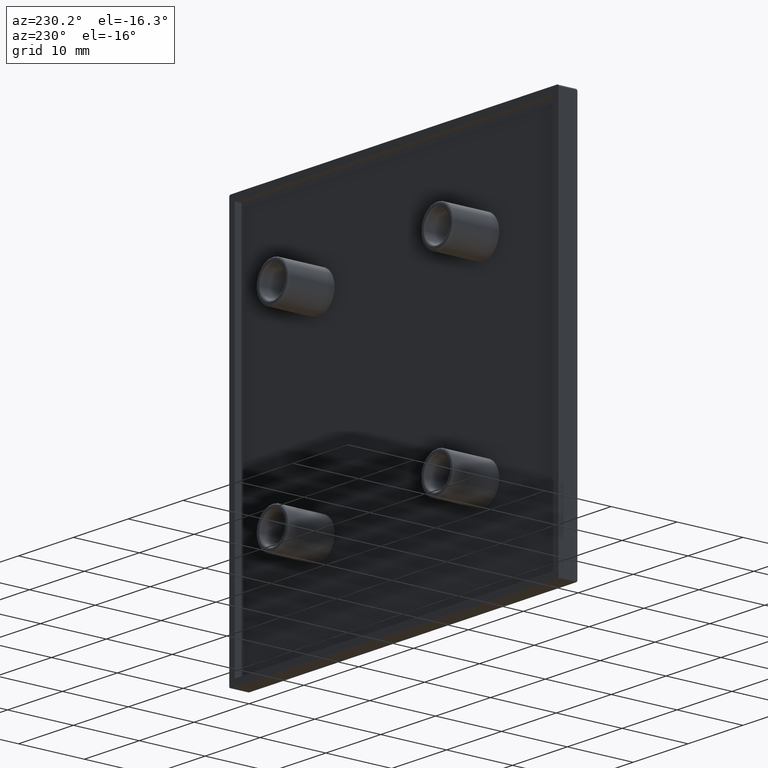
[diagram: clean part render]
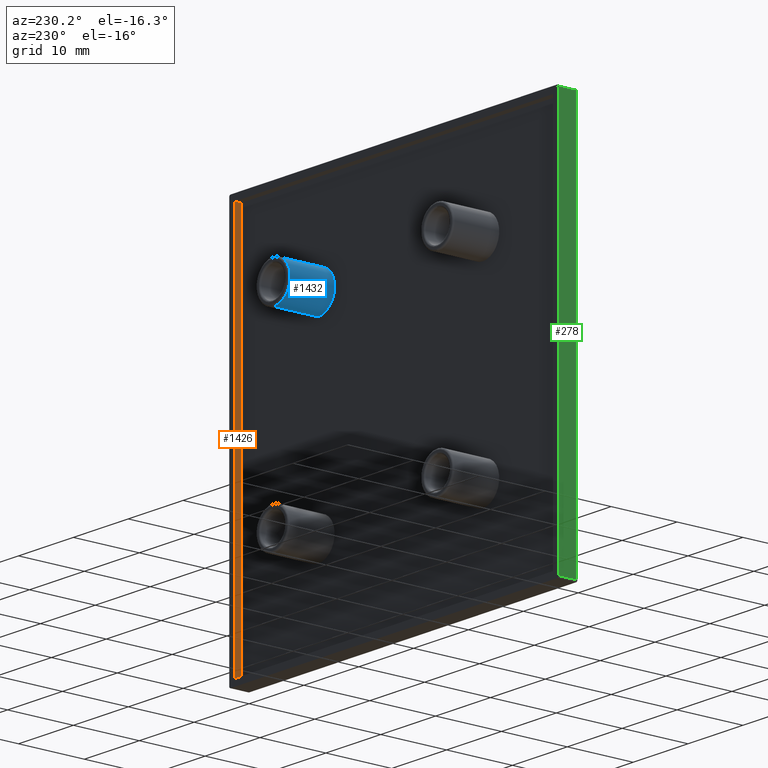
[diagram: same view with three faces highlighted in distinct colors, each labeled with its STEP entity id]
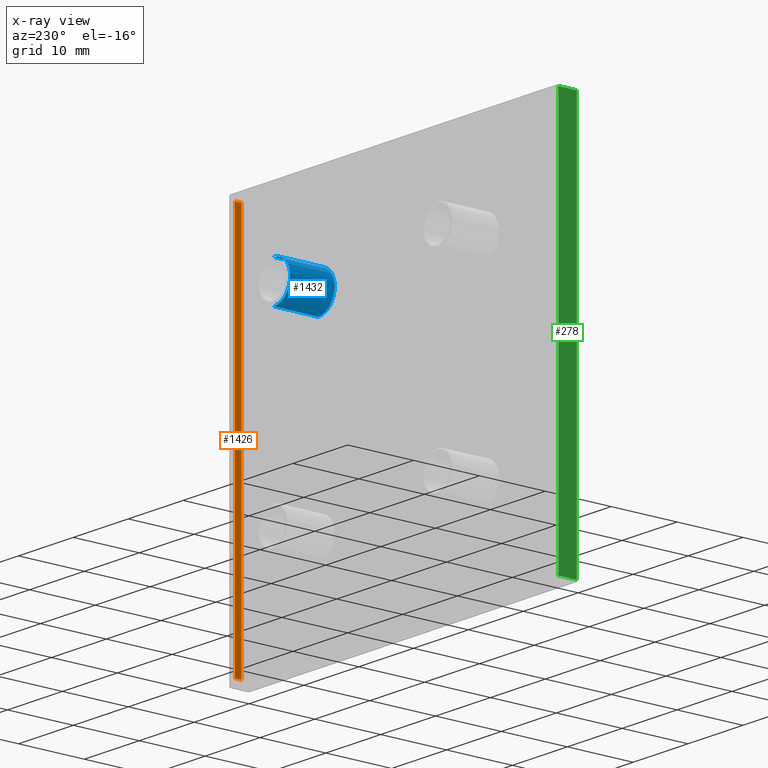
[diagram: x-ray of the same camera — body ghosted, the three highlighted faces saturated]
A machine part, auxiliary view with three faces highlighted in distinct colors.
The next image is the same camera in x-ray (body ghosted, the three faces saturated) — at least one of them is partly hidden behind the body in this view.
Their STEP definitions:

[orange] entity #1426 — the highlighted planar face has unit normal (1, -0, 0).
#26 = EDGE_CURVE ( 'NONE', #835, #838, #1366, .T. ) ;
#110 = PLANE ( 'NONE',  #412 ) ;
#111 = CARTESIAN_POINT ( 'NONE',  ( 59.00000000000000700, 2.000000000000000000, -1.000000000000000000 ) ) ;
#112 = DIRECTION ( 'NONE',  ( 1.000000000000000000, -0.0000000000000000000, 0.0000000000000000000 ) ) ;
#113 = DIRECTION ( 'NONE',  ( 0.0000000000000000000, 0.0000000000000000000, -1.000000000000000000 ) ) ;
#412 = AXIS2_PLACEMENT_3D ( 'NONE', #111, #112, #113 ) ;
#491 = LINE ( 'NONE', #1627, #493 ) ;
#493 = VECTOR ( 'NONE', #1628, 1000.000000000000000 ) ;
#498 = LINE ( 'NONE', #1634, #499 ) ;
#499 = VECTOR ( 'NONE', #1635, 1000.000000000000000 ) ;
#500 = LINE ( 'NONE', #659, #501 ) ;
#501 = VECTOR ( 'NONE', #660, 1000.000000000000000 ) ;
#659 = CARTESIAN_POINT ( 'NONE',  ( 59.00000000000000700, 2.000000000000000000, -30.00000000000000400 ) ) ;
#660 = DIRECTION ( 'NONE',  ( -0.0000000000000000000, -0.0000000000000000000, -1.000000000000000000 ) ) ;
#824 = VERTEX_POINT ( 'NONE', #1604 ) ;
#833 = VERTEX_POINT ( 'NONE', #1613 ) ;
#835 = VERTEX_POINT ( 'NONE', #1615 ) ;
#838 = VERTEX_POINT ( 'NONE', #1618 ) ;
#872 = CARTESIAN_POINT ( 'NONE',  ( 59.00000000000000700, 3.000000000000000000, -30.00000000000000400 ) ) ;
#873 = DIRECTION ( 'NONE',  ( -0.0000000000000000000, -0.0000000000000000000, 1.000000000000000000 ) ) ;
#1002 = EDGE_CURVE ( 'NONE', #838, #824, #491, .T. ) ;
#1005 = EDGE_CURVE ( 'NONE', #835, #833, #498, .T. ) ;
#1006 = EDGE_CURVE ( 'NONE', #824, #833, #500, .T. ) ;
#1075 = ORIENTED_EDGE ( 'NONE', *, *, #1005, .T. ) ;
#1076 = ORIENTED_EDGE ( 'NONE', *, *, #1006, .F. ) ;
#1077 = ORIENTED_EDGE ( 'NONE', *, *, #1002, .F. ) ;
#1078 = ORIENTED_EDGE ( 'NONE', *, *, #26, .F. ) ;
#1233 = EDGE_LOOP ( 'NONE', ( #1075, #1076, #1077, #1078 ) ) ;
#1366 = LINE ( 'NONE', #872, #1374 ) ;
#1374 = VECTOR ( 'NONE', #873, 1000.000000000000000 ) ;
#1426 = ADVANCED_FACE ( 'NONE', ( #1684 ), #110, .F. ) ;
#1604 = CARTESIAN_POINT ( 'NONE',  ( 59.00000000000001400, 2.000000000000000000, -1.000000000000002000 ) ) ;
#1613 = CARTESIAN_POINT ( 'NONE',  ( 59.00000000000000000, 2.000000000000000000, -59.00000000000001400 ) ) ;
#1615 = CARTESIAN_POINT ( 'NONE',  ( 58.99999999499999600, 3.000000000000000000, -58.99999999499999600 ) ) ;
#1618 = CARTESIAN_POINT ( 'NONE',  ( 58.99999999499999600, 3.000000000000000000, -1.000000005000000000 ) ) ;
#1627 = CARTESIAN_POINT ( 'NONE',  ( 59.00000000000000700, 2.500000000000000000, -1.000000000000000000 ) ) ;
#1628 = DIRECTION ( 'NONE',  ( -0.0000000000000000000, -1.000000000000000000, -0.0000000000000000000 ) ) ;
#1634 = CARTESIAN_POINT ( 'NONE',  ( 59.00000000000000700, 2.500000000000000000, -59.00000000000000700 ) ) ;
#1635 = DIRECTION ( 'NONE',  ( -0.0000000000000000000, -1.000000000000000000, -0.0000000000000000000 ) ) ;
#1684 = FACE_OUTER_BOUND ( 'NONE', #1233, .T. ) ;

[blue] entity #1432 — the highlighted cylindrical surface (edge-blend (fillet) strip) has radius 3 mm, axis along (0, -1, 0).
#25 = EDGE_CURVE ( 'NONE', #810, #597, #1373, .T. ) ;
#131 = CARTESIAN_POINT ( 'NONE',  ( 45.00000000000000000, 8.750000000000000000, -15.00000000000000000 ) ) ;
#132 = DIRECTION ( 'NONE',  ( 0.0000000000000000000, -1.000000000000000000, 0.0000000000000000000 ) ) ;
#133 = DIRECTION ( 'NONE',  ( 0.0000000000000000000, 0.0000000000000000000, -1.000000000000000000 ) ) ;
#320 = AXIS2_PLACEMENT_3D ( 'NONE', #869, #870, #871 ) ;
#362 = AXIS2_PLACEMENT_3D ( 'NONE', #1544, #1545, #1546 ) ;
#418 = AXIS2_PLACEMENT_3D ( 'NONE', #131, #132, #133 ) ;
#486 = CIRCLE ( 'NONE', #362, 3.000000000000002700 ) ;
#504 = VECTOR ( 'NONE', #717, 1000.000000000000000 ) ;
#518 = LINE ( 'NONE', #693, #520 ) ;
#520 = VECTOR ( 'NONE', #694, 1000.000000000000000 ) ;
#532 = LINE ( 'NONE', #716, #504 ) ;
#566 = EDGE_CURVE ( 'NONE', #819, #594, #486, .T. ) ;
#594 = VERTEX_POINT ( 'NONE', #1572 ) ;
#597 = VERTEX_POINT ( 'NONE', #1575 ) ;
#693 = CARTESIAN_POINT ( 'NONE',  ( 45.00000000000000000, 8.750000000000000000, -18.00000000000000400 ) ) ;
#694 = DIRECTION ( 'NONE',  ( 0.0000000000000000000, -1.000000000000000000, 0.0000000000000000000 ) ) ;
#716 = CARTESIAN_POINT ( 'NONE',  ( 45.00000000000000000, 8.750000000000000000, -11.99999999999999600 ) ) ;
#717 = DIRECTION ( 'NONE',  ( 0.0000000000000000000, -1.000000000000000000, 0.0000000000000000000 ) ) ;
#810 = VERTEX_POINT ( 'NONE', #1590 ) ;
#819 = VERTEX_POINT ( 'NONE', #1599 ) ;
#869 = CARTESIAN_POINT ( 'NONE',  ( 45.00000000000000000, 8.750000000000000000, -15.00000000000000200 ) ) ;
#870 = DIRECTION ( 'NONE',  ( 0.0000000000000000000, 1.000000000000000000, -0.0000000000000000000 ) ) ;
#871 = DIRECTION ( 'NONE',  ( 0.0000000000000000000, 0.0000000000000000000, 1.000000000000000000 ) ) ;
#1021 = EDGE_CURVE ( 'NONE', #810, #594, #518, .T. ) ;
#1030 = EDGE_CURVE ( 'NONE', #597, #819, #532, .T. ) ;
#1150 = ORIENTED_EDGE ( 'NONE', *, *, #1030, .F. ) ;
#1151 = ORIENTED_EDGE ( 'NONE', *, *, #25, .F. ) ;
#1152 = ORIENTED_EDGE ( 'NONE', *, *, #1021, .T. ) ;
#1153 = ORIENTED_EDGE ( 'NONE', *, *, #566, .F. ) ;
#1213 = EDGE_LOOP ( 'NONE', ( #1150, #1151, #1152, #1153 ) ) ;
#1373 = CIRCLE ( 'NONE', #320, 3.000000000000000900 ) ;
#1432 = ADVANCED_FACE ( 'NONE', ( #1699 ), #1700, .T. ) ;
#1544 = CARTESIAN_POINT ( 'NONE',  ( 45.00000000000000000, 2.000000000000000000, -15.00000000000000000 ) ) ;
#1545 = DIRECTION ( 'NONE',  ( 0.0000000000000000000, -1.000000000000000000, 0.0000000000000000000 ) ) ;
#1546 = DIRECTION ( 'NONE',  ( 0.0000000000000000000, 0.0000000000000000000, -1.000000000000000000 ) ) ;
#1572 = CARTESIAN_POINT ( 'NONE',  ( 45.00000000000000000, 2.000000000000000000, -18.00000000000000400 ) ) ;
#1575 = CARTESIAN_POINT ( 'NONE',  ( 45.00000000000000000, 8.750000000000000000, -12.00000000000000000 ) ) ;
#1590 = CARTESIAN_POINT ( 'NONE',  ( 45.00000000000000000, 8.750000000000000000, -18.00000000000000400 ) ) ;
#1599 = CARTESIAN_POINT ( 'NONE',  ( 45.00000000000000000, 2.000000000000000000, -11.99999999999999600 ) ) ;
#1699 = FACE_OUTER_BOUND ( 'NONE', #1213, .T. ) ;
#1700 = CYLINDRICAL_SURFACE ( 'NONE', #418, 3.000000000000002700 ) ;

[green] entity #278 — the highlighted planar face has unit normal (1, -0, 0).
#3 = EDGE_CURVE ( 'NONE', #815, #820, #1364, .T. ) ;
#5 = EDGE_CURVE ( 'NONE', #825, #599, #1368, .T. ) ;
#8 = EDGE_CURVE ( 'NONE', #599, #815, #1376, .T. ) ;
#15 = EDGE_CURVE ( 'NONE', #825, #820, #1117, .T. ) ;
#278 = ADVANCED_FACE ( 'NONE', ( #454 ), #1518, .F. ) ;
#356 = AXIS2_PLACEMENT_3D ( 'NONE', #1519, #1520, #1521 ) ;
#454 = FACE_OUTER_BOUND ( 'NONE', #1236, .T. ) ;
#557 = CARTESIAN_POINT ( 'NONE',  ( 0.0000000000000000000, 3.000000000000000000, -30.00000000000000000 ) ) ;
#582 = CARTESIAN_POINT ( 'NONE',  ( 0.0000000000000000000, 0.2500000000000000000, -30.00000000000000400 ) ) ;
#598 = DIRECTION ( 'NONE',  ( 0.0000000000000000000, 0.0000000000000000000, -1.000000000000000000 ) ) ;
#599 = VERTEX_POINT ( 'NONE', #1576 ) ;
#608 = CARTESIAN_POINT ( 'NONE',  ( 0.0000000000000000000, 1.625000000000000200, -59.75000000000000700 ) ) ;
#609 = DIRECTION ( 'NONE',  ( 0.0000000000000000000, 1.000000000000000000, 0.0000000000000000000 ) ) ;
#613 = CARTESIAN_POINT ( 'NONE',  ( 0.0000000000000000000, 1.625000000000000200, -0.2500000000000000000 ) ) ;
#614 = DIRECTION ( 'NONE',  ( -0.0000000000000000000, -1.000000000000000000, -0.0000000000000000000 ) ) ;
#815 = VERTEX_POINT ( 'NONE', #1595 ) ;
#820 = VERTEX_POINT ( 'NONE', #1600 ) ;
#825 = VERTEX_POINT ( 'NONE', #1605 ) ;
#1012 = DIRECTION ( 'NONE',  ( 0.0000000000000000000, 0.0000000000000000000, -1.000000000000000000 ) ) ;
#1109 = VECTOR ( 'NONE', #1012, 1000.000000000000000 ) ;
#1117 = LINE ( 'NONE', #557, #1109 ) ;
#1236 = EDGE_LOOP ( 'NONE', ( #1299, #1300, #1301, #1302 ) ) ;
#1299 = ORIENTED_EDGE ( 'NONE', *, *, #5, .F. ) ;
#1300 = ORIENTED_EDGE ( 'NONE', *, *, #15, .T. ) ;
#1301 = ORIENTED_EDGE ( 'NONE', *, *, #3, .F. ) ;
#1302 = ORIENTED_EDGE ( 'NONE', *, *, #8, .F. ) ;
#1364 = LINE ( 'NONE', #608, #1367 ) ;
#1367 = VECTOR ( 'NONE', #609, 1000.000000000000000 ) ;
#1368 = LINE ( 'NONE', #613, #1370 ) ;
#1370 = VECTOR ( 'NONE', #614, 1000.000000000000000 ) ;
#1376 = LINE ( 'NONE', #582, #1378 ) ;
#1378 = VECTOR ( 'NONE', #598, 1000.000000000000000 ) ;
#1518 = PLANE ( 'NONE',  #356 ) ;
#1519 = CARTESIAN_POINT ( 'NONE',  ( 0.0000000000000000000, 0.2500000000000000000, -0.2500000000000000000 ) ) ;
#1520 = DIRECTION ( 'NONE',  ( 1.000000000000000000, -0.0000000000000000000, 0.0000000000000000000 ) ) ;
#1521 = DIRECTION ( 'NONE',  ( 0.0000000000000000000, 0.0000000000000000000, -1.000000000000000000 ) ) ;
#1576 = CARTESIAN_POINT ( 'NONE',  ( 0.0000000000000000000, 0.2499999999999999400, -0.2500000000000017800 ) ) ;
#1595 = CARTESIAN_POINT ( 'NONE',  ( 1.680513367352531900E-015, 0.2500000000000000000, -59.75000000000000000 ) ) ;
#1600 = CARTESIAN_POINT ( 'NONE',  ( 0.0000000000000000000, 3.000000000000000000, -59.75000000000000700 ) ) ;
#1605 = CARTESIAN_POINT ( 'NONE',  ( 0.0000000000000000000, 3.000000000000000000, -0.2500000000000000600 ) ) ;